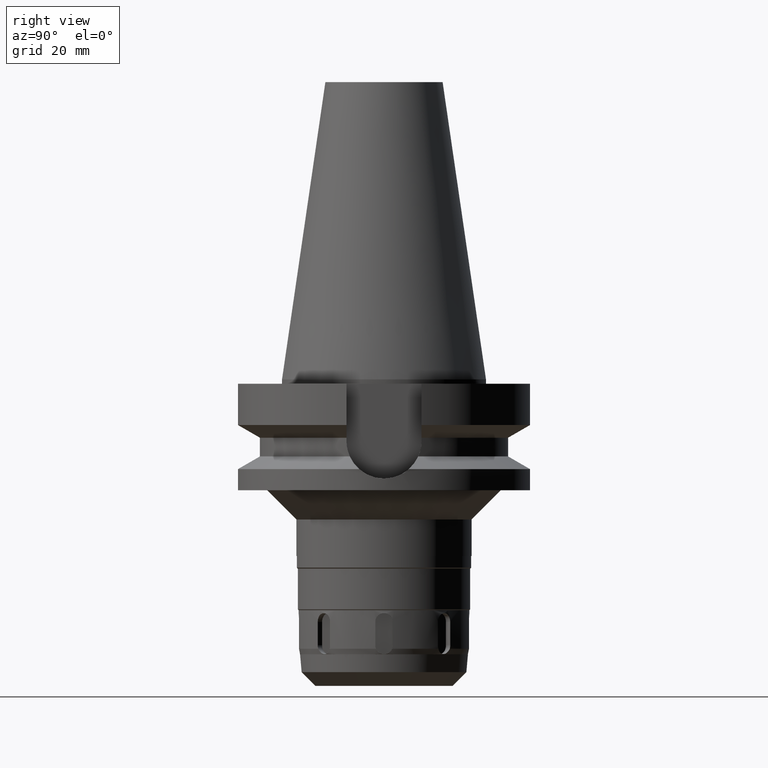
[diagram: clean part render]
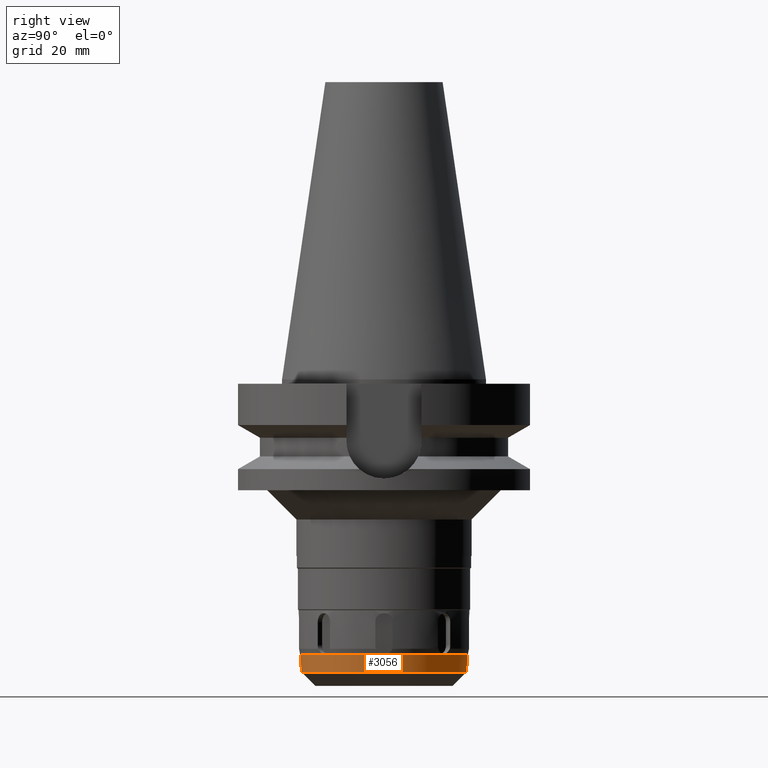
[diagram: same view with one face highlighted and labeled with its STEP entity id]
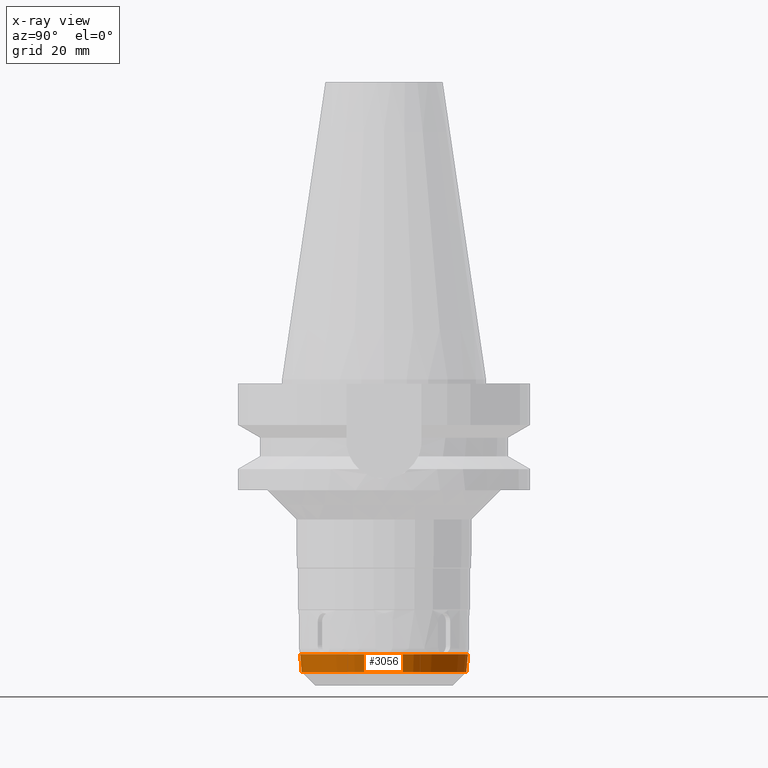
[diagram: x-ray of the same camera — body ghosted, the highlighted face saturated]
A machine part, right view. The second image highlights one B-rep face of the part: STEP entity #3056.
The next image is the same camera in x-ray: the body ghosted, the highlighted face saturated — about 0% of this face is hidden behind the body in this view.
In plain terms, the highlighted conical surface has half-angle 5 deg.
Its self-contained STEP definition (entity closure, byte-faithful):
#255=CARTESIAN_POINT('',(0.E0,0.E0,-1.00285E2));
#256=DIRECTION('',(0.E0,0.E0,1.E0));
#257=DIRECTION('',(0.E0,-1.E0,0.E0));
#258=AXIS2_PLACEMENT_3D('',#255,#256,#257);
#270=DIRECTION('',(0.E0,8.715574274795E-2,-9.961946980917E-1));
#271=VECTOR('',#270,6.144244409989E0);
#272=CARTESIAN_POINT('',(-4.820818504833E-14,-2.875050618518E1,
-9.416413629499E1));
#273=LINE('',#272,#271);
#285=DIRECTION('',(0.E0,-8.715574274795E-2,-9.961946980917E-1));
#286=VECTOR('',#285,6.144244409989E0);
#287=CARTESIAN_POINT('',(0.E0,2.875050618518E1,-9.416413629499E1));
#288=LINE('',#287,#286);
#292=CARTESIAN_POINT('',(0.E0,0.E0,-9.416413629499E1));
#293=DIRECTION('',(0.E0,0.E0,1.E0));
#294=DIRECTION('',(0.E0,-1.E0,0.E0));
#295=AXIS2_PLACEMENT_3D('',#292,#293,#294);
#2472=CARTESIAN_POINT('',(0.E0,2.8215E1,-1.00285E2));
#2473=VERTEX_POINT('',#2472);
#2474=CARTESIAN_POINT('',(0.E0,-2.8215E1,-1.00285E2));
#2475=VERTEX_POINT('',#2474);
#2476=CARTESIAN_POINT('',(0.E0,2.875050618518E1,-9.416413629499E1));
#2477=VERTEX_POINT('',#2476);
#2478=CARTESIAN_POINT('',(-9.289544855931E-14,-2.875050618518E1,
-9.416413629499E1));
#2479=VERTEX_POINT('',#2478);
#3044=CARTESIAN_POINT('',(0.E0,0.E0,-9.722456814750E1));
#3045=DIRECTION('',(0.E0,0.E0,1.E0));
#3046=DIRECTION('',(0.E0,1.E0,0.E0));
#3047=AXIS2_PLACEMENT_3D('',#3044,#3045,#3046);
#3048=CONICAL_SURFACE('',#3047,2.848275309259E1,5.E0);
#3049=ORIENTED_EDGE('',*,*,#3034,.T.);
#3050=ORIENTED_EDGE('',*,*,#3011,.F.);
#3051=ORIENTED_EDGE('',*,*,#3038,.F.);
#3053=ORIENTED_EDGE('',*,*,#3052,.T.);
#3054=EDGE_LOOP('',(#3049,#3050,#3051,#3053));
#3055=FACE_OUTER_BOUND('',#3054,.F.);
#259=CIRCLE('',#258,2.8215E1);
#296=CIRCLE('',#295,2.875050618518E1);
#3011=EDGE_CURVE('',#2475,#2473,#259,.T.);
#3034=EDGE_CURVE('',#2477,#2473,#288,.T.);
#3038=EDGE_CURVE('',#2479,#2475,#273,.T.);
#3052=EDGE_CURVE('',#2479,#2477,#296,.T.);
#3056=ADVANCED_FACE('',(#3055),#3048,.T.);